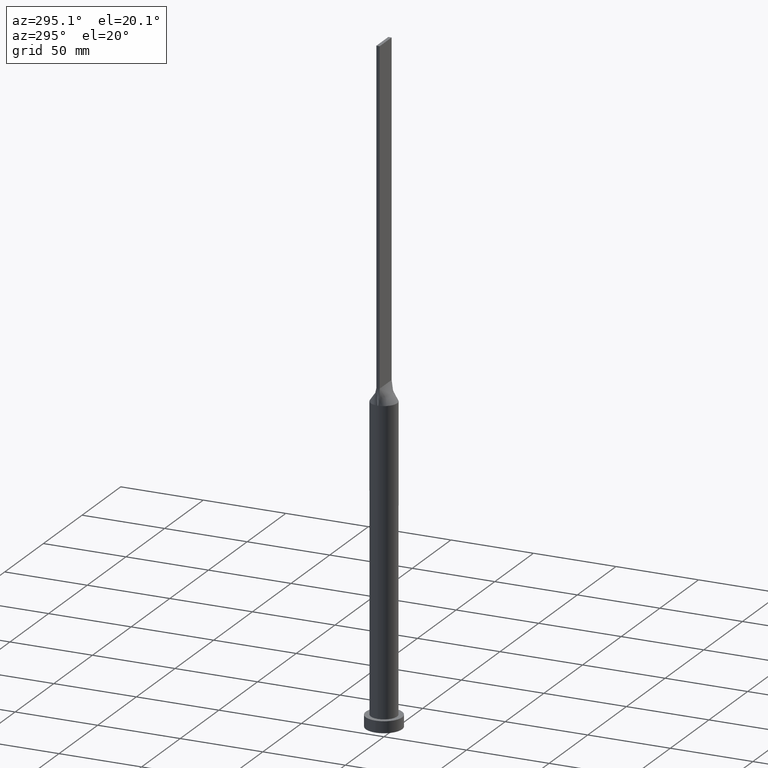
[diagram: clean part render]
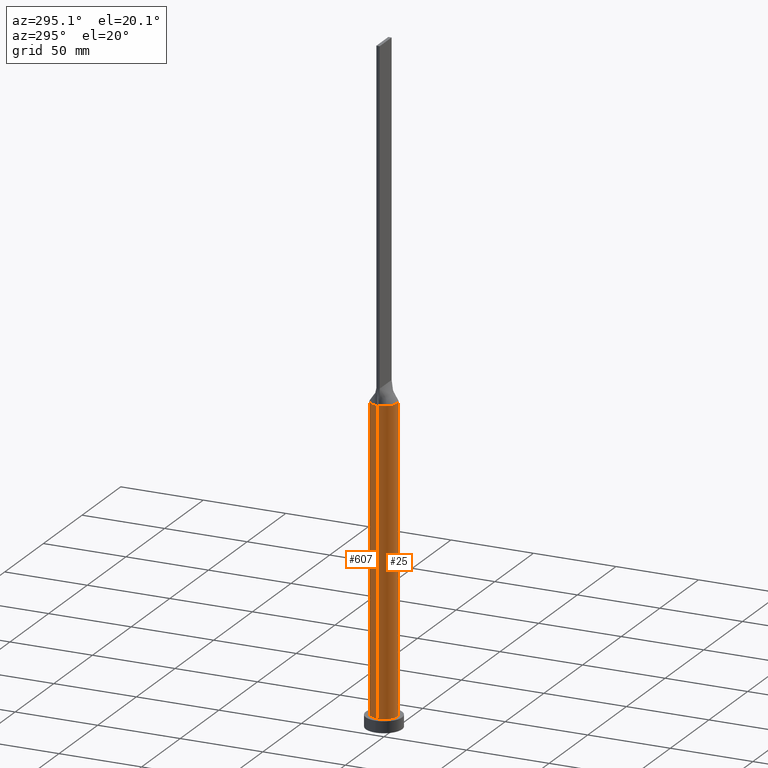
[diagram: same view with one multi-face feature highlighted, each face labeled with its STEP entity id]
A machine part, auxiliary view. The highlighted faces form ONE feature: a constant-radius fillet chain: 2 tangent blend faces with common blend radius 8 mm. The faces share edges in the B-rep.
Their STEP definitions:
[1] entity #25 (Cylinder):
#21 = DIRECTION ( 'NONE',  ( 0.000000000000000000, 0.000000000000000000, 1.000000000000000000 ) ) ;
#23 = DIRECTION ( 'NONE',  ( -0.000000000000000000, -0.000000000000000000, -1.000000000000000000 ) ) ;
#25 = ADVANCED_FACE ( 'NONE', ( #501 ), #350, .T. ) ;
#50 = ORIENTED_EDGE ( 'NONE', *, *, #515, .F. ) ;
#65 = LINE ( 'NONE', #358, #310 ) ;
#68 = DIRECTION ( 'NONE',  ( 0.000000000000000000, 0.000000000000000000, 1.000000000000000000 ) ) ;
#72 = EDGE_CURVE ( 'NONE', #229, #198, #408, .T. ) ;
#75 = CARTESIAN_POINT ( 'NONE',  ( 8.000000000000000000, 9.797174393178825657E-16, 190.0000000000000000 ) ) ;
#88 = AXIS2_PLACEMENT_3D ( 'NONE', #388, #441, #605 ) ;
#110 = DIRECTION ( 'NONE',  ( -0.000000000000000000, -0.000000000000000000, -1.000000000000000000 ) ) ;
#116 = LINE ( 'NONE', #75, #215 ) ;
#153 = DIRECTION ( 'NONE',  ( -1.000000000000000000, 0.000000000000000000, 0.000000000000000000 ) ) ;
#169 = CARTESIAN_POINT ( 'NONE',  ( 0.000000000000000000, 0.000000000000000000, 190.0000000000000000 ) ) ;
#182 = AXIS2_PLACEMENT_3D ( 'NONE', #514, #68, #264 ) ;
#198 = VERTEX_POINT ( 'NONE', #537 ) ;
#209 = ORIENTED_EDGE ( 'NONE', *, *, #72, .T. ) ;
#214 = CARTESIAN_POINT ( 'NONE',  ( -7.934257051336532029, -1.023775119746132001, 190.0000000000000000 ) ) ;
#215 = VECTOR ( 'NONE', #23, 1000.000000000000000 ) ;
#229 = VERTEX_POINT ( 'NONE', #467 ) ;
#237 = CIRCLE ( 'NONE', #427, 8.000000000000000000 ) ;
#249 = DIRECTION ( 'NONE',  ( -0.000000000000000000, -0.000000000000000000, -1.000000000000000000 ) ) ;
#250 = VERTEX_POINT ( 'NONE', #214 ) ;
#254 = EDGE_CURVE ( 'NONE', #603, #250, #237, .T. ) ;
#255 = DIRECTION ( 'NONE',  ( 1.000000000000000000, 0.000000000000000000, 0.000000000000000000 ) ) ;
#264 = DIRECTION ( 'NONE',  ( 1.000000000000000000, 9.769962616701377556E-15, 0.000000000000000000 ) ) ;
#288 = CIRCLE ( 'NONE', #578, 8.000000000000000000 ) ;
#300 = CARTESIAN_POINT ( 'NONE',  ( 0.000000000000000000, 0.000000000000000000, 190.0000000000000000 ) ) ;
#301 = ORIENTED_EDGE ( 'NONE', *, *, #381, .F. ) ;
#310 = VECTOR ( 'NONE', #110, 1000.000000000000000 ) ;
#319 = EDGE_CURVE ( 'NONE', #603, #229, #65, .T. ) ;
#350 = CYLINDRICAL_SURFACE ( 'NONE', #369, 8.000000000000000000 ) ;
#358 = CARTESIAN_POINT ( 'NONE',  ( -8.000000000000000000, 0.000000000000000000, 190.0000000000000000 ) ) ;
#364 = VERTEX_POINT ( 'NONE', #513 ) ;
#369 = AXIS2_PLACEMENT_3D ( 'NONE', #609, #249, #153 ) ;
#381 = EDGE_CURVE ( 'NONE', #364, #616, #400, .T. ) ;
#388 = CARTESIAN_POINT ( 'NONE',  ( 0.000000000000000000, 0.000000000000000000, 7.000000000000000000 ) ) ;
#400 = CIRCLE ( 'NONE', #182, 8.000000000000000000 ) ;
#408 = CIRCLE ( 'NONE', #88, 8.000000000000000000 ) ;
#410 = ORIENTED_EDGE ( 'NONE', *, *, #254, .F. ) ;
#427 = AXIS2_PLACEMENT_3D ( 'NONE', #300, #21, #255 ) ;
#430 = CARTESIAN_POINT ( 'NONE',  ( -7.999864793045825984, 2.648518981350782698E-14, 190.0000000000000284 ) ) ;
#441 = DIRECTION ( 'NONE',  ( 0.000000000000000000, 0.000000000000000000, 1.000000000000000000 ) ) ;
#447 = EDGE_LOOP ( 'NONE', ( #50, #301, #606, #410, #601, #209 ) ) ;
#467 = CARTESIAN_POINT ( 'NONE',  ( -8.000000000000000000, 0.000000000000000000, 7.000000000000000000 ) ) ;
#501 = FACE_OUTER_BOUND ( 'NONE', #447, .T. ) ;
#513 = CARTESIAN_POINT ( 'NONE',  ( 7.934268799922667981, -1.023776637617846319, 190.0000000000000000 ) ) ;
#514 = CARTESIAN_POINT ( 'NONE',  ( 0.000000000000000000, 0.000000000000000000, 190.0000000000000000 ) ) ;
#515 = EDGE_CURVE ( 'NONE', #616, #198, #116, .T. ) ;
#531 = DIRECTION ( 'NONE',  ( 1.000000000000000000, 0.000000000000000000, 0.000000000000000000 ) ) ;
#537 = CARTESIAN_POINT ( 'NONE',  ( 8.000000000000000000, 9.797174393178825657E-16, 7.000000000000000000 ) ) ;
#543 = CARTESIAN_POINT ( 'NONE',  ( 7.999864793045824207, 2.000157186781041891E-15, 190.0000000000000000 ) ) ;
#546 = EDGE_CURVE ( 'NONE', #250, #364, #288, .T. ) ;
#578 = AXIS2_PLACEMENT_3D ( 'NONE', #169, #620, #531 ) ;
#601 = ORIENTED_EDGE ( 'NONE', *, *, #319, .T. ) ;
#603 = VERTEX_POINT ( 'NONE', #430 ) ;
#605 = DIRECTION ( 'NONE',  ( 1.000000000000000000, 0.000000000000000000, 0.000000000000000000 ) ) ;
#606 = ORIENTED_EDGE ( 'NONE', *, *, #546, .F. ) ;
#609 = CARTESIAN_POINT ( 'NONE',  ( 0.000000000000000000, 0.000000000000000000, 190.0000000000000000 ) ) ;
#616 = VERTEX_POINT ( 'NONE', #543 ) ;
#620 = DIRECTION ( 'NONE',  ( 0.000000000000000000, 0.000000000000000000, 1.000000000000000000 ) ) ;
[2] entity #607 (Cylinder):
#14 = CIRCLE ( 'NONE', #32, 8.000000000000000000 ) ;
#23 = DIRECTION ( 'NONE',  ( -0.000000000000000000, -0.000000000000000000, -1.000000000000000000 ) ) ;
#30 = CIRCLE ( 'NONE', #469, 8.000000000000000000 ) ;
#32 = AXIS2_PLACEMENT_3D ( 'NONE', #314, #580, #521 ) ;
#37 = CYLINDRICAL_SURFACE ( 'NONE', #201, 8.000000000000000000 ) ;
#39 = EDGE_CURVE ( 'NONE', #614, #346, #166, .T. ) ;
#46 = CARTESIAN_POINT ( 'NONE',  ( 5.183259239191615464, 6.116644610143058713, 190.0000000000000284 ) ) ;
#48 = CARTESIAN_POINT ( 'NONE',  ( 0.5861720261543130750, 7.999999999999998224, 190.0000000000000000 ) ) ;
#60 = ORIENTED_EDGE ( 'NONE', *, *, #319, .F. ) ;
#65 = LINE ( 'NONE', #358, #310 ) ;
#75 = CARTESIAN_POINT ( 'NONE',  ( 8.000000000000000000, 9.797174393178825657E-16, 190.0000000000000000 ) ) ;
#84 = CARTESIAN_POINT ( 'NONE',  ( -3.862537548001455878, 7.028047916340264045, 190.0000000000000284 ) ) ;
#86 = DIRECTION ( 'NONE',  ( -1.000000000000000000, 0.000000000000000000, 0.000000000000000000 ) ) ;
#87 = CARTESIAN_POINT ( 'NONE',  ( -0.5861720261543129640, 7.999999999999998224, 189.9999999999999432 ) ) ;
#92 = CARTESIAN_POINT ( 'NONE',  ( 7.934252830235720033, 1.023774570959714802, 190.0000000000000000 ) ) ;
#95 = CARTESIAN_POINT ( 'NONE',  ( 1.172177046651856624, 7.934824862069278950, 190.0000000000000284 ) ) ;
#102 = CIRCLE ( 'NONE', #199, 8.000000000000000000 ) ;
#107 = CARTESIAN_POINT ( 'NONE',  ( 7.849610172922079521, 1.679519592204998801, 190.0000000000000284 ) ) ;
#110 = DIRECTION ( 'NONE',  ( -0.000000000000000000, -0.000000000000000000, -1.000000000000000000 ) ) ;
#111 = DIRECTION ( 'NONE',  ( 0.000000000000000000, 0.000000000000000000, 1.000000000000000000 ) ) ;
#116 = LINE ( 'NONE', #75, #215 ) ;
#133 = CARTESIAN_POINT ( 'NONE',  ( -6.511821874825407974, 4.668925682402791821, 190.0000000000000284 ) ) ;
#141 = CARTESIAN_POINT ( 'NONE',  ( 6.511821874825409751, 4.668925682402791821, 190.0000000000000284 ) ) ;
#142 = CARTESIAN_POINT ( 'NONE',  ( -1.172177046651856402, 7.934824862069282503, 190.0000000000000568 ) ) ;
#166 = B_SPLINE_CURVE_WITH_KNOTS ( 'NONE', 3,
 ( #595, #107, #508, #241, #439, #141, #292, #491, #46, #536, #234, #638, #189, #95, #48, #87, #142, #394, #593, #84, #340, #194, #282, #179, #133, #397, #544, #185, #330, #246 ),
 .UNSPECIFIED., .F., .F.,
 ( 4, 2, 2, 2, 2, 2, 2, 2, 2, 2, 2, 2, 2, 2, 4 ),
 ( 0.000000000000000000, 0.1250000000000000000, 0.1875000000000000000, 0.2500000000000000000, 0.3125000000000000000, 0.3750000000000000000, 0.4375000000000000000, 0.5000000000000000000, 0.5625000000000000000, 0.6250000000000000000, 0.6875000000000000000, 0.7500000000000000000, 0.8125000000000000000, 0.8750000000000000000, 1.000000000000000000 ),
 .UNSPECIFIED. ) ;
#179 = CARTESIAN_POINT ( 'NONE',  ( -6.226863775955933100, 5.046530946333157353, 190.0000000000000284 ) ) ;
#185 = CARTESIAN_POINT ( 'NONE',  ( -7.675166908885236339, 2.399868494543667907, 189.9999999999999432 ) ) ;
#189 = CARTESIAN_POINT ( 'NONE',  ( 2.302877821226935406, 7.683241396761612663, 190.0000000000000284 ) ) ;
#194 = CARTESIAN_POINT ( 'NONE',  ( -5.183259239191613688, 6.116644610143057825, 189.9999999999999716 ) ) ;
#198 = VERTEX_POINT ( 'NONE', #537 ) ;
#199 = AXIS2_PLACEMENT_3D ( 'NONE', #409, #353, #361 ) ;
#201 = AXIS2_PLACEMENT_3D ( 'NONE', #597, #289, #86 ) ;
#215 = VECTOR ( 'NONE', #23, 1000.000000000000000 ) ;
#217 = ORIENTED_EDGE ( 'NONE', *, *, #567, .F. ) ;
#222 = DIRECTION ( 'NONE',  ( 1.000000000000000000, 0.000000000000000000, 0.000000000000000000 ) ) ;
#229 = VERTEX_POINT ( 'NONE', #467 ) ;
#234 = CARTESIAN_POINT ( 'NONE',  ( 3.862537548001455878, 7.028047916340264933, 190.0000000000000000 ) ) ;
#241 = CARTESIAN_POINT ( 'NONE',  ( 7.192469010134847629, 3.526369025759696907, 189.9999999999999716 ) ) ;
#242 = ORIENTED_EDGE ( 'NONE', *, *, #39, .F. ) ;
#246 = CARTESIAN_POINT ( 'NONE',  ( -7.934264564332944580, 1.023776086464161406, 190.0000000000000000 ) ) ;
#272 = ORIENTED_EDGE ( 'NONE', *, *, #336, .T. ) ;
#282 = CARTESIAN_POINT ( 'NONE',  ( -5.562660223239390689, 5.770452176164420521, 190.0000000000000568 ) ) ;
#289 = DIRECTION ( 'NONE',  ( -0.000000000000000000, -0.000000000000000000, -1.000000000000000000 ) ) ;
#292 = CARTESIAN_POINT ( 'NONE',  ( 6.226863775955932212, 5.046530946333158241, 190.0000000000000853 ) ) ;
#304 = CARTESIAN_POINT ( 'NONE',  ( -7.934264564332944580, 1.023776086464161406, 190.0000000000000000 ) ) ;
#308 = EDGE_CURVE ( 'NONE', #346, #603, #102, .T. ) ;
#310 = VECTOR ( 'NONE', #110, 1000.000000000000000 ) ;
#314 = CARTESIAN_POINT ( 'NONE',  ( 0.000000000000000000, 0.000000000000000000, 190.0000000000000000 ) ) ;
#319 = EDGE_CURVE ( 'NONE', #603, #229, #65, .T. ) ;
#330 = CARTESIAN_POINT ( 'NONE',  ( -7.849610172922081297, 1.679519592204999023, 189.9999999999999716 ) ) ;
#336 = EDGE_CURVE ( 'NONE', #198, #229, #30, .T. ) ;
#340 = CARTESIAN_POINT ( 'NONE',  ( -4.333237558274722900, 6.745559271922134670, 190.0000000000000000 ) ) ;
#346 = VERTEX_POINT ( 'NONE', #304 ) ;
#353 = DIRECTION ( 'NONE',  ( 0.000000000000000000, 0.000000000000000000, 1.000000000000000000 ) ) ;
#356 = ORIENTED_EDGE ( 'NONE', *, *, #308, .F. ) ;
#358 = CARTESIAN_POINT ( 'NONE',  ( -8.000000000000000000, 0.000000000000000000, 190.0000000000000000 ) ) ;
#361 = DIRECTION ( 'NONE',  ( 1.000000000000000000, 0.000000000000000000, 0.000000000000000000 ) ) ;
#394 = CARTESIAN_POINT ( 'NONE',  ( -2.302877821226935851, 7.683241396761610886, 189.9999999999999716 ) ) ;
#397 = CARTESIAN_POINT ( 'NONE',  ( -6.994548530637814565, 3.908833842696238570, 189.9999999999999716 ) ) ;
#409 = CARTESIAN_POINT ( 'NONE',  ( 0.000000000000000000, 0.000000000000000000, 190.0000000000000000 ) ) ;
#430 = CARTESIAN_POINT ( 'NONE',  ( -7.999864793045825984, 2.648518981350782698E-14, 190.0000000000000284 ) ) ;
#439 = CARTESIAN_POINT ( 'NONE',  ( 6.994548530637815453, 3.908833842696238570, 189.9999999999999716 ) ) ;
#462 = EDGE_LOOP ( 'NONE', ( #217, #509, #272, #60, #356, #242 ) ) ;
#467 = CARTESIAN_POINT ( 'NONE',  ( -8.000000000000000000, 0.000000000000000000, 7.000000000000000000 ) ) ;
#469 = AXIS2_PLACEMENT_3D ( 'NONE', #570, #111, #222 ) ;
#491 = CARTESIAN_POINT ( 'NONE',  ( 5.562660223239392465, 5.770452176164421410, 190.0000000000000284 ) ) ;
#508 = CARTESIAN_POINT ( 'NONE',  ( 7.675166908885234562, 2.399868494543665243, 189.9999999999998863 ) ) ;
#509 = ORIENTED_EDGE ( 'NONE', *, *, #515, .T. ) ;
#515 = EDGE_CURVE ( 'NONE', #616, #198, #116, .T. ) ;
#521 = DIRECTION ( 'NONE',  ( 1.000000000000000000, 0.000000000000000000, 0.000000000000000000 ) ) ;
#536 = CARTESIAN_POINT ( 'NONE',  ( 4.333237558274722900, 6.745559271922132893, 190.0000000000000284 ) ) ;
#537 = CARTESIAN_POINT ( 'NONE',  ( 8.000000000000000000, 9.797174393178825657E-16, 7.000000000000000000 ) ) ;
#543 = CARTESIAN_POINT ( 'NONE',  ( 7.999864793045824207, 2.000157186781041891E-15, 190.0000000000000000 ) ) ;
#544 = CARTESIAN_POINT ( 'NONE',  ( -7.192469010134845853, 3.526369025759696019, 189.9999999999999432 ) ) ;
#567 = EDGE_CURVE ( 'NONE', #616, #614, #14, .T. ) ;
#570 = CARTESIAN_POINT ( 'NONE',  ( 0.000000000000000000, 0.000000000000000000, 7.000000000000000000 ) ) ;
#580 = DIRECTION ( 'NONE',  ( 0.000000000000000000, 0.000000000000000000, 1.000000000000000000 ) ) ;
#593 = CARTESIAN_POINT ( 'NONE',  ( -2.847317194822260422, 7.497028652483947120, 190.0000000000000284 ) ) ;
#595 = CARTESIAN_POINT ( 'NONE',  ( 7.934252830235720033, 1.023774570959714802, 190.0000000000000000 ) ) ;
#597 = CARTESIAN_POINT ( 'NONE',  ( 0.000000000000000000, 0.000000000000000000, 190.0000000000000000 ) ) ;
#603 = VERTEX_POINT ( 'NONE', #430 ) ;
#607 = ADVANCED_FACE ( 'NONE', ( #628 ), #37, .T. ) ;
#614 = VERTEX_POINT ( 'NONE', #92 ) ;
#616 = VERTEX_POINT ( 'NONE', #543 ) ;
#628 = FACE_OUTER_BOUND ( 'NONE', #462, .T. ) ;
#638 = CARTESIAN_POINT ( 'NONE',  ( 2.847317194822259534, 7.497028652483948008, 189.9999999999999716 ) ) ;